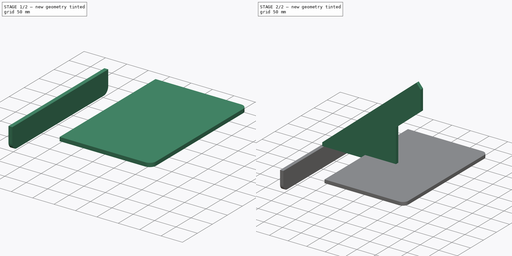
[diagram: build sequence overview — one tinted view per stage of 2, left to right]
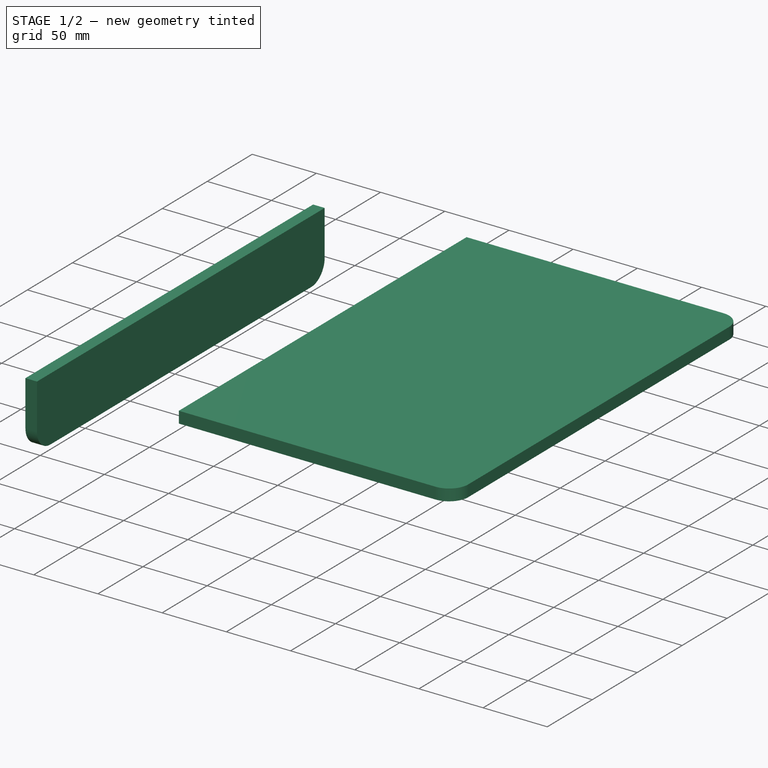
[diagram: stage 1 of 2 — iso view after this stage's code; geometry added in this stage tinted green]
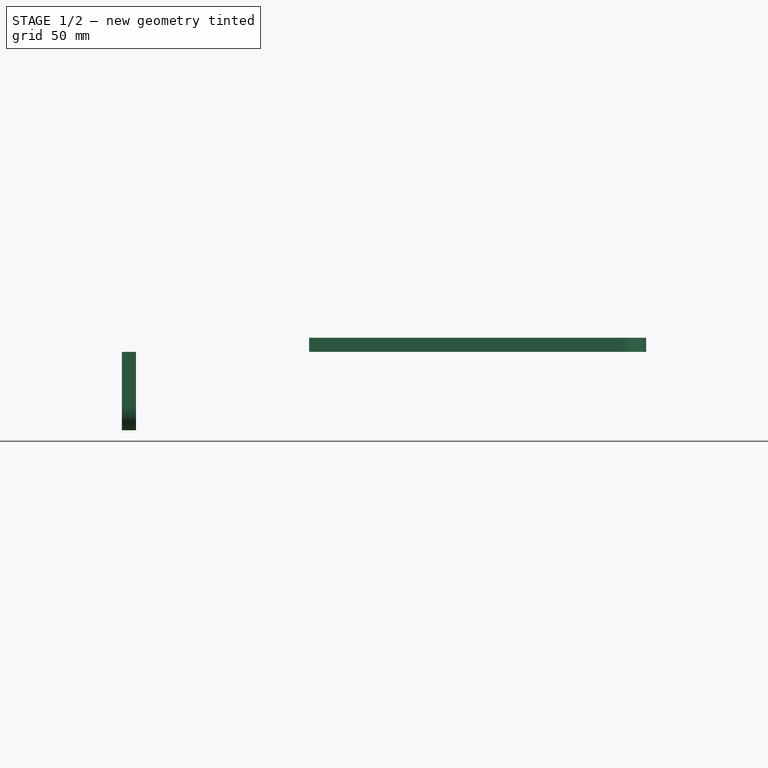
[diagram: stage 1 of 2 — front view after this stage's code; geometry added in this stage tinted green]
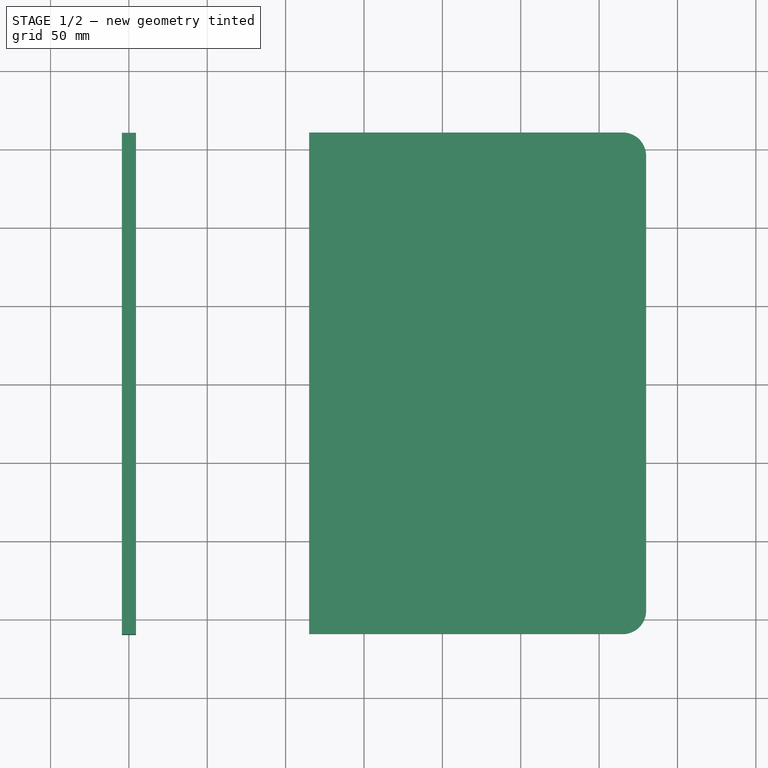
[diagram: stage 1 of 2 — top view after this stage's code; geometry added in this stage tinted green]
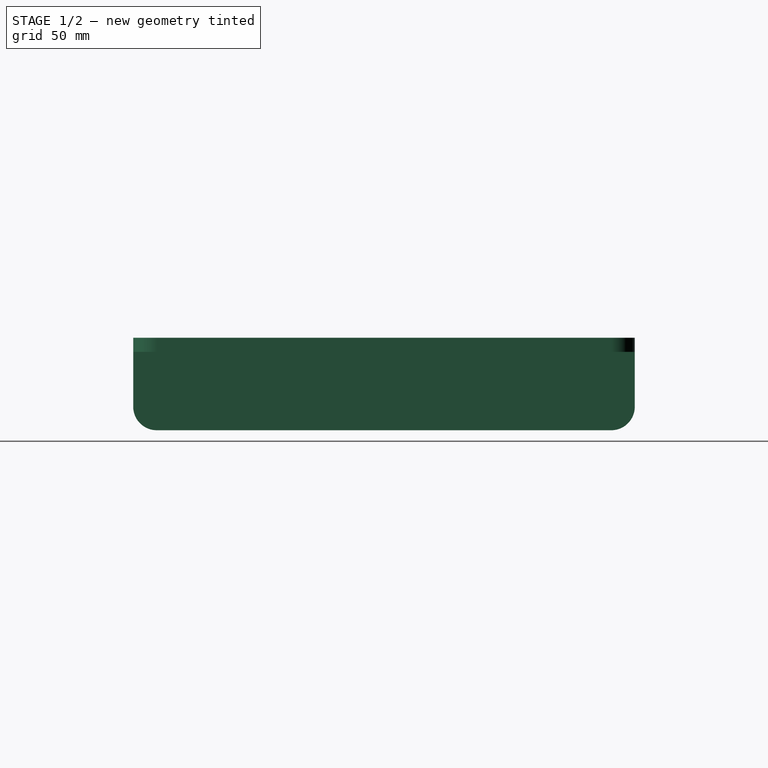
[diagram: stage 1 of 2 — right view after this stage's code; geometry added in this stage tinted green]
FCSTD DOCUMENT  (FreeCAD 0.19R)
Label: Wing_Assembly_right
License: Creative Commons Attribution-ShareAlike
LicenseURL: http://creativecommons.org/licenses/by-sa/4.0/
objects: App::Link×7, PartDesign::CoordinateSystem×5, Sketcher::SketchObject×4, PartDesign::Pad×4, PartDesign::Body×4, App::DocumentObjectGroup×2, App::FeaturePython×1, App::Part×1
note: 21 computed .brp shape members not serialized (recipe doc carries the construction recipe); baked Part::Feature solids carry a one-line shape summary decoded from their .brp
EXTERNAL_REF file=../key_dimensions.FCStd obj=Spreadsheet

FEATURE [PartDesign::Body] Wing_Support_B
  Group = -> [LCS_0001,Sketch001,Pad001]
  Origin = -> Origin002
  Tip = -> Pad001
FEATURE [App::Link] Wing_support_A001
  AssemblyType = Asm4EE
  AttachedBy = #LCS_0
  AttachedTo = Parent Assembly#LCS_Origin
  AttachmentOffset = pos=(0,115.5,0) rot=(0,0,1;0rad)
  LinkPlacement = pos=(0,115.5,0) rot=(0,0,1;0rad)
  LinkedObject = -> Wing_support_A
  Placement = pos=(0,115.5,0) rot=(0,0,1;0rad)
  expr: Placement = LCS_Origin.Placement * AttachmentOffset * LCS_0.Placement ^ -1
  expr: .AttachmentOffset.Base.y = key_dimensions#<<Dimensions>>.rail_C
FEATURE [App::Link] Wing_support_A002
  AssemblyType = Asm4EE
  AttachedBy = #LCS_0
  AttachedTo = Parent Assembly#LCS_Origin
  AttachmentOffset = pos=(0,-115.5,0) rot=(0,0,1;0rad)
  LinkPlacement = pos=(0,-115.5,0) rot=(0,0,1;0rad)
  LinkedObject = -> Wing_support_A
  Placement = pos=(0,-115.5,0) rot=(0,0,1;0rad)
  expr: Placement = LCS_Origin.Placement * AttachmentOffset * LCS_0.Placement ^ -1
  expr: .AttachmentOffset.Base.y = -key_dimensions#<<Dimensions>>.rail_C
FEATURE [App::Link] Wing_Support_B001
  AssemblyType = Asm4EE
  AttachedBy = #LCS_0001
  AttachedTo = Parent Assembly#LCS_Origin
  AttachmentOffset = pos=(0,38.5,0) rot=(0,0,1;0rad)
  LinkPlacement = pos=(0,38.5,0) rot=(0,0,1;0rad)
  LinkedObject = -> Wing_Support_B
  Placement = pos=(0,38.5,0) rot=(0,0,1;0rad)
  expr: Placement = LCS_Origin.Placement * AttachmentOffset * LCS_0001.Placement ^ -1
  expr: .AttachmentOffset.Base.y = key_dimensions#<<Dimensions>>.rail_A
FEATURE [App::Link] Wing_Support_B002
  AssemblyType = Asm4EE
  AttachedBy = #LCS_0001
  AttachedTo = Parent Assembly#LCS_Origin
  AttachmentOffset = pos=(0,-38.5,0) rot=(0,0,1;0rad)
  LinkPlacement = pos=(0,-38.5,0) rot=(0,0,1;0rad)
  LinkedObject = -> Wing_Support_B
  Placement = pos=(0,-38.5,0) rot=(0,0,1;0rad)
  expr: Placement = LCS_Origin.Placement * AttachmentOffset * LCS_0001.Placement ^ -1
  expr: .AttachmentOffset.Base.y = -key_dimensions#<<Dimensions>>.rail_A
FEATURE [PartDesign::CoordinateSystem] LCS_0002
  AttacherType = Attacher::AttachEngine3D
  MapMode = 2
  Support = -> [X_Axis003]
FEATURE [Sketcher::SketchObject] Sketch002
  FullyConstrained = true
  MapMode = 5
  Support = -> [XY_Plane003]
  expr: Constraints[11] = <<key_dimensions>>#<<Dimensions>>.wing_depth
  expr: Constraints[15] = <<key_dimensions>>#<<Dimensions>>.wing_length
  expr: Constraints[16] = <<key_dimensions>>#<<Dimensions>>.acrylic_width
  expr: Constraints[22] = <<key_dimensions>>#<<Dimensions>>.cradle_rounded
  sketch-geometry (9):
    g0: LineSegment StartX=115 StartY=160 StartZ=0 EndX=315 EndY=160 EndZ=0
    g1: LineSegment StartX=330 StartY=145 StartZ=0 EndX=330 EndY=-145 EndZ=0
    g2: LineSegment StartX=315 StartY=-160 StartZ=0 EndX=115 EndY=-160 EndZ=0
    g3: LineSegment StartX=115 StartY=-160 StartZ=0 EndX=115 EndY=160 EndZ=0
    g4: GeomPoint X=115 Y=0 Z=0
    g5: LineSegment StartX=315 StartY=160 StartZ=0 EndX=315 EndY=-160 EndZ=0
    g6: LineSegment StartX=115 StartY=145 StartZ=0 EndX=330 EndY=145 EndZ=0
    g7: ArcOfCircle CenterX=315 CenterY=145 CenterZ=0 NormalX=0 NormalY=0 NormalZ=1 AngleXU=0 Radius=15 StartAngle=4e-16 EndAngle=1.5708
    g8: ArcOfCircle CenterX=315 CenterY=-145 CenterZ=0 NormalX=0 NormalY=0 NormalZ=1 AngleXU=0 Radius=15 StartAngle=4.71239 EndAngle=6.28319
  constraints (25):
    c: Coincident(g2,g3)
    c: Coincident(g3,g0)
    c: Horizontal(g0)
    c: Horizontal(g2)
    c: Vertical(g1)
    c: Vertical(g3)
    c: PointOnObject(g4,g-1)
    c: Symmetric(g2,g0,g4)
    c: PointOnObject(g5,g0)
    c: PointOnObject(g5,g2)
    c: Vertical(g5)
    c: DistanceY(g5,g5) = 320
    c: PointOnObject(g6,g3)
    c: PointOnObject(g6,g1)
    c: Horizontal(g6)
    c: DistanceX(g6,g6) = 215
    c: DistanceX(g-1,g6) = 330
    c: Tangent(g0,g7) = 1.5708
    c: Tangent(g1,g7) = 1.5708
    c: Tangent(g2,g8) = 1.5708
    c: Tangent(g1,g8) = 1.5708
    c: Equal(g8,g7)
    c: Radius(g7) = 15
    c: PointOnObject(g1,g6)
    c: PointOnObject(g0,g5)
FEATURE [PartDesign::Pad] Pad002
  Direction = (1,1,1)
  Length = 9
  Length2 = 100
  Profile = -> Sketch002
  Reversed = true
  Type = 0
  expr: Length = <<key_dimensions>>#<<Dimensions>>.MDF_thick
FEATURE [PartDesign::Body] Wing
  Group = -> [LCS_0002,Sketch002,Pad002]
  Origin = -> Origin003
  Tip = -> Pad002
FEATURE [App::Link] Wing001
  AssemblyType = Asm4EE
  AttachedBy = #LCS_0002
  AttachedTo = Parent Assembly#LCS_Origin
  AttachmentOffset = pos=(0,0,0) rot=(0,1,0;-0.698132rad)
  LinkPlacement = pos=(0,0,0) rot=(0,1,0;5.58505rad)
  LinkedObject = -> Wing
  Placement = pos=(0,0,0) rot=(0,1,0;5.58505rad)
  expr: Placement = LCS_Origin.Placement * AttachmentOffset * LCS_0002.Placement ^ -1
  expr: .AttachmentOffset.Rotation.Angle = -<<key_dimensions>>#<<Dimensions>>.cradle_tilting
FEATURE [PartDesign::CoordinateSystem] LCS_0003
  AttacherType = Attacher::AttachEngine3D
  MapMode = 2
  Support = -> [X_Axis004]
FEATURE [Sketcher::SketchObject] Sketch003
  FullyConstrained = true
  MapMode = 5
  Placement = pos=(0,0,0) rot=(0.57735,0.57735,0.57735;2.0944rad)
  Support = -> [YZ_Plane004]
  expr: Constraints[13] = <<key_dimensions>>#<<Dimensions>>.wing_depth
  expr: Constraints[19] = <<key_dimensions>>#<<Dimensions>>.cradle_rounded
  expr: Constraints[24] = <<key_dimensions>>#<<Dimensions>>.MDF_thick
  sketch-geometry (9):
    g0: LineSegment StartX=-160 StartY=-9 StartZ=0 EndX=160 EndY=-9 EndZ=0
    g1: LineSegment StartX=160 StartY=-9 StartZ=0 EndX=160 EndY=-44 EndZ=0
    g2: LineSegment StartX=145 StartY=-59 StartZ=0 EndX=-145 EndY=-59 EndZ=0
    g3: LineSegment StartX=-160 StartY=-44 StartZ=0 EndX=-160 EndY=-9 EndZ=0
    g4: LineSegment StartX=145 StartY=-9 StartZ=0 EndX=145 EndY=-59 EndZ=0
    g5: LineSegment StartX=-160 StartY=-44 StartZ=0 EndX=160 EndY=-44 EndZ=0
    g6: ArcOfCircle CenterX=-145 CenterY=-44 CenterZ=0 NormalX=0 NormalY=0 NormalZ=1 AngleXU=0 Radius=15 StartAngle=3.14159 EndAngle=4.71239
    g7: ArcOfCircle CenterX=145 CenterY=-44 CenterZ=0 NormalX=0 NormalY=0 NormalZ=1 AngleXU=0 Radius=15 StartAngle=4.71239 EndAngle=6.28319
    g8: GeomPoint X=0 Y=-9 Z=0
  constraints (25):
    c: Coincident(g0,g1)
    c: Coincident(g3,g0)
    c: Horizontal(g0)
    c: Horizontal(g2)
    c: Vertical(g1)
    c: Vertical(g3)
    c: PointOnObject(g4,g0)
    c: PointOnObject(g4,g2)
    c: Vertical(g4)
    c: PointOnObject(g5,g3)
    c: PointOnObject(g5,g1)
    c: Horizontal(g5)
    c: DistanceY(g4,g4) = 50
    c: DistanceX(g5,g5) = 320
    c: Tangent(g3,g6) = 1.5708
    c: Tangent(g2,g6) = 1.5708
    c: Tangent(g1,g7) = 1.5708
    c: Tangent(g2,g7) = 1.5708
    c: Equal(g7,g6)
    c: Radius(g7) = 15
    c: PointOnObject(g1,g5)
    c: PointOnObject(g2,g4)
    c: PointOnObject(g8,g-2)
    c: Symmetric(g0,g0,g8)
    c: DistanceY(g8,g-1) = 9
FEATURE [PartDesign::Pad] Pad003
  Direction = (1,1,1)
  Length = 9
  Length2 = 100
  Midplane = true
  Placement = pos=(0,0,0) rot=(0.57735,0.57735,0.57735;2.0944rad)
  Profile = -> Sketch003
  Type = 0
  expr: Length = <<key_dimensions>>#<<Dimensions>>.MDF_thick
FEATURE [PartDesign::Body] Rib
  Group = -> [LCS_0003,Sketch003,Pad003]
  Origin = -> Origin004
  Tip = -> Pad003
FEATURE [App::DocumentObjectGroup] Parts
  Group = -> [Wing_support_A,Wing_Support_B,Wing,Rib]
FEATURE [App::Link] Rib001
  AssemblyType = Asm4EE
  AttachedBy = #LCS_0003
  AttachedTo = Wing001#LCS_0002
  AttachmentOffset = pos=(150,0,0) rot=(0,0,1;0rad)
  LinkPlacement = pos=(114.907,0,96.4181) rot=(0,1,0;5.58505rad)
  LinkedObject = -> Rib
  Placement = pos=(114.907,0,96.4181) rot=(0,1,0;5.58505rad)
  expr: Placement = Wing001.Placement * LCS_0002.Placement * AttachmentOffset * LCS_0003.Placement ^ -1
FEATURE [App::Link] Rib002
  AssemblyType = Asm4EE
  AttachedBy = #LCS_0003
  AttachedTo = Wing001#LCS_0002
  AttachmentOffset = pos=(280,0,0) rot=(0,0,1;0rad)
  LinkPlacement = pos=(214.492,0,179.981) rot=(0,1,0;5.58505rad)
  LinkedObject = -> Rib
  Placement = pos=(214.492,0,179.981) rot=(0,1,0;5.58505rad)
  expr: Placement = Wing001.Placement * LCS_0002.Placement * AttachmentOffset * LCS_0003.Placement ^ -1
FEATURE [App::Part] Model
  Configuration = 0
  Group = -> [LCS_Origin,Constraints,Variables,Wing_support_A001,Wing_support_A002,Wing_Support_B001,Wing_Support_B002,Wing001,Rib001,Rib002]
  Origin = -> Origin
  Type = Assembly4 Model

RESOLVED EXTERNAL PARTS (link-assembly join: the EXTERNAL_REF files above that resolve inside this repo's crawl, each included once):
---- part ../key_dimensions.FCStd = doc fcstd_41c4ab9f2bd9 ----
FCSTD DOCUMENT  (FreeCAD 0.19R)
Label: key_dimensions
License: Creative Commons Attribution-ShareAlike
LicenseURL: http://creativecommons.org/licenses/by-sa/4.0/
objects: Spreadsheet::Sheet×1

FEATURE [Spreadsheet::Sheet] Spreadsheet  label="Dimensions"
  cells = A1=MDF thickness; A2(MDF_thick)=9; B2=MDF thick; A3(MDF_thin)=5.5; B3=MDF thin; A4=Main Frame; A5(frame_depth)=176; B5=Frame depth; A6(frame_width)=100; B6=Frame width; A7(window_width)=690; B7=Window width; A8(center_height)=299.25; B8=Center height (base to center); A9(cradle_base)=235; B9=Cradle base (base to cradle base); A10(slider_axis_height)=190; B10=slider axis height (base to horizontal sliders axis); A11(top_height)=1150; B11=Top height (top height, without curve top); A12(rear_overhang)=400; B12=Rear overhang (from the center); A13=Acrylic; A14(acrylic_width)=330; B14=width; A15(acrylic_depth)=469; B15=depth; A16=Cradle; A17(cradle_tilting)=40; B17=cradle tilting; A18(cradle_rounded)=15; B18=cradle rounded; A19(base_cradle_width)=400; B19=Base Cradle width; A20(base_cradle_depth)=320; B20=Base Cradle depth; A21=Base Rails; A22(rail_A)=38.5; B22=Rail A; A23(rail_B)=65.5; B23=Rail B; A24(rail_C)=115.5; B24=Rail C; A25(rail_D)=140.5; B25=Rail D; A26(wing_depth)=320; B26=Wing depth; A27(wing_length)=215; B27=Wing length
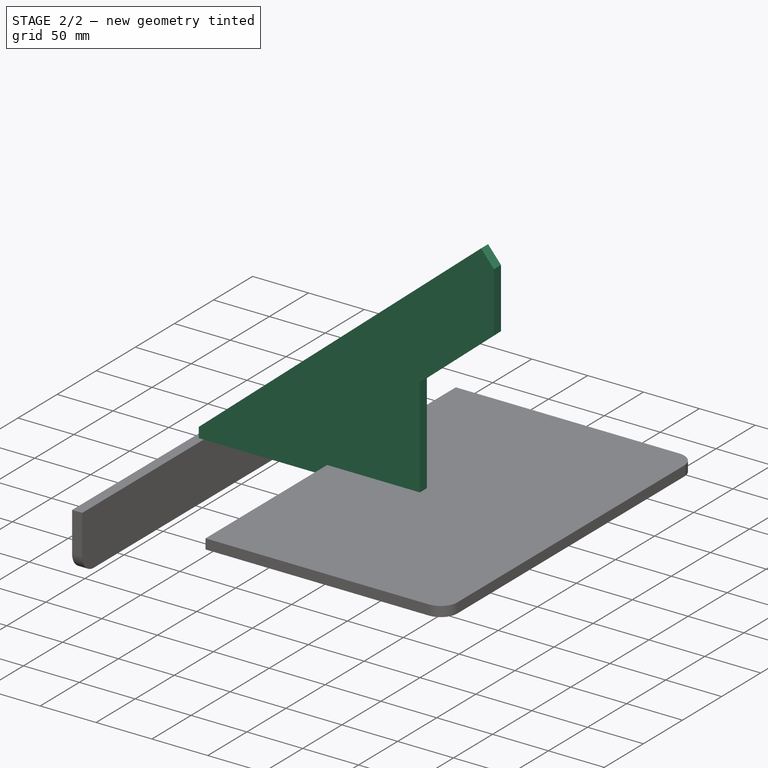
[diagram: stage 2 of 2 — iso view after this stage's code; geometry added in this stage tinted green]
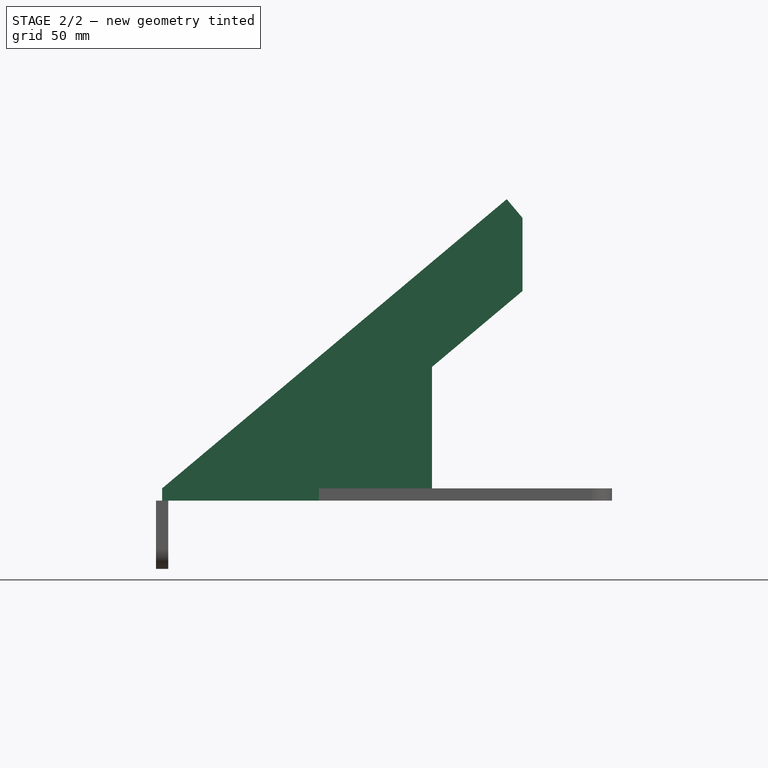
[diagram: stage 2 of 2 — front view after this stage's code; geometry added in this stage tinted green]
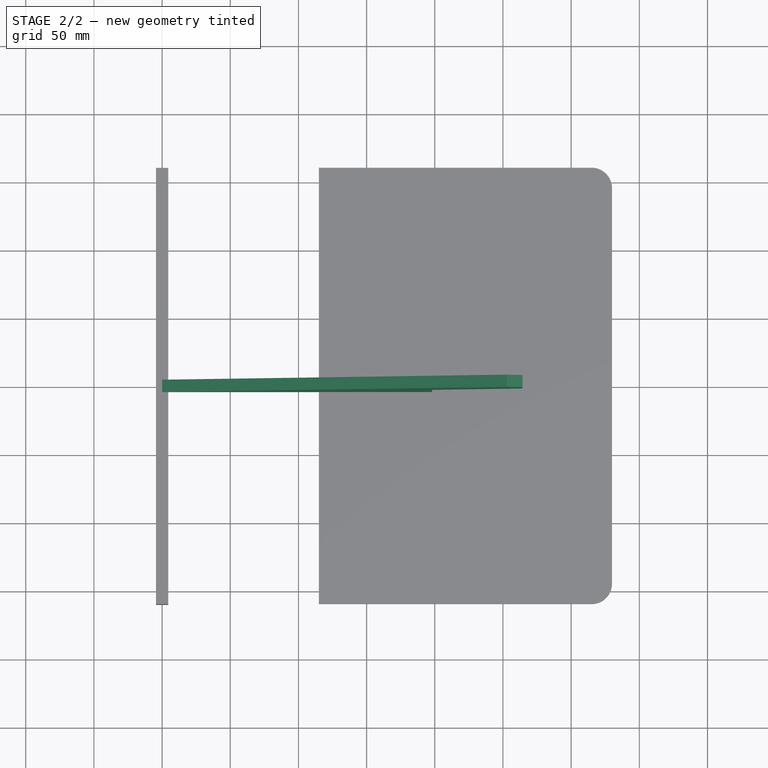
[diagram: stage 2 of 2 — top view after this stage's code; geometry added in this stage tinted green]
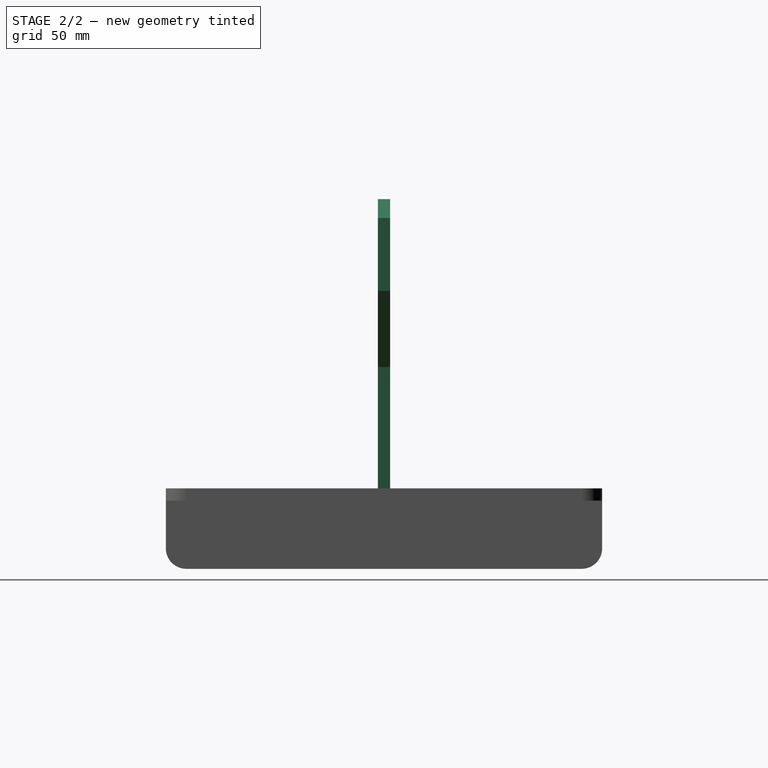
[diagram: stage 2 of 2 — right view after this stage's code; geometry added in this stage tinted green]
FEATURE [PartDesign::CoordinateSystem] LCS_Origin
  AttacherType = Attacher::AttachEngine3D
  MapMode = 2
  Support = -> [X_Axis]
FEATURE [App::DocumentObjectGroup] Constraints
FEATURE [App::FeaturePython] Variables  # WARN: FeaturePython — macro-defined, semantics opaque (R4)
FEATURE [PartDesign::CoordinateSystem] LCS_0
  AttacherType = Attacher::AttachEngine3D
  MapMode = 2
  Support = -> [X_Axis001]
FEATURE [Sketcher::SketchObject] Sketch  label="Wing_Support_A_Sketch"
  FullyConstrained = true
  MapMode = 5
  Placement = pos=(0,0,0) rot=(1,0,0;1.5708rad)
  Support = -> [XZ_Plane001]
  expr: Constraints[13] = <<key_dimensions>>#<<Dimensions>>.acrylic_width
  expr: Constraints[19] = <<key_dimensions>>#<<Dimensions>>.MDF_thick * 2
  expr: Constraints[18] = <<key_dimensions>>#<<Dimensions>>.MDF_thick
  expr: Constraints[9] = <<key_dimensions>>#<<Dimensions>>.cradle_tilting
  sketch-geometry (10):
    g0: LineSegment StartX=0 StartY=-9 StartZ=0 EndX=0 EndY=0 EndZ=0
    g1: LineSegment StartX=0 StartY=0 StartZ=0 EndX=252.795 EndY=212.12 EndZ=0
    g2: LineSegment StartX=252.795 StartY=212.12 StartZ=0 EndX=264.365 EndY=198.331 EndZ=0
    g3: LineSegment StartX=264.365 StartY=198.331 StartZ=0 EndX=264.365 EndY=144.809 EndZ=0
    g4: LineSegment StartX=264.365 StartY=144.809 StartZ=0 EndX=198 EndY=89.1227 EndZ=0
    g5: LineSegment StartX=198 StartY=89.1227 StartZ=0 EndX=198 EndY=0 EndZ=0
    g6: LineSegment StartX=175 StartY=-9 StartZ=0 EndX=0 EndY=-9 EndZ=0
    g7: LineSegment StartX=160.076 StartY=134.319 StartZ=0 EndX=198 EndY=89.1227 EndZ=0
    g8: LineSegment StartX=175 StartY=-9 StartZ=0 EndX=175 EndY=0 EndZ=0
    g9: LineSegment StartX=175 StartY=0 StartZ=0 EndX=198 EndY=0 EndZ=0
  constraints (30):
    c: Coincident(g0,g1)
    c: Coincident(g1,g2)
    c: Coincident(g2,g3)
    c: Vertical(g3)
    c: Coincident(g3,g4)
    c: Coincident(g4,g5)
    c: Vertical(g5)
    c: Coincident(g6,g0)
    c: Horizontal(g6)
    c: Angle(g1) = 0.698132
    c: Perpendicular(g1,g2)
    c: Parallel(g4,g1)
    c: Vertical(g0)
    c: Distance(g1) = 330
    c: PointOnObject(g7,g1)
    c: PointOnObject(g7,g4)
    c: Perpendicular(g1,g7)
    c: Distance(g7) = 59
    c: DistanceY(g0,g0) = 9
    c: Distance(g2) = 18
    c: Coincident(g0,g-1)
    c: PointOnObject(g4,g7)
    c: Coincident(g8,g9)
    c: Horizontal(g9)
    c: Coincident(g6,g8)
    c: Coincident(g5,g9)
    c: PointOnObject(g0,g9)
    c: DistanceX(g6,g6) = 175
    c: Vertical(g8)
    c: DistanceX(g8,g4) = 23
FEATURE [PartDesign::CoordinateSystem] LCS_0001
  AttacherType = Attacher::AttachEngine3D
  MapMode = 2
  Support = -> [X_Axis002]
FEATURE [Sketcher::SketchObject] Sketch001  label="Wing_Support_B_Sketch"
  FullyConstrained = true
  MapMode = 5
  Placement = pos=(0,0,0) rot=(1,0,0;1.5708rad)
  Support = -> [XZ_Plane002]
  expr: Constraints[11] = <<key_dimensions>>#<<Dimensions>>.acrylic_width
  expr: Constraints[17] = <<key_dimensions>>#<<Dimensions>>.MDF_thick * 2
  expr: Constraints[16] = <<key_dimensions>>#<<Dimensions>>.MDF_thick
  expr: Constraints[7] = <<key_dimensions>>#<<Dimensions>>.cradle_tilting
  sketch-geometry (9):
    g0: LineSegment StartX=0 StartY=-9 StartZ=0 EndX=0 EndY=0 EndZ=0
    g1: LineSegment StartX=0 StartY=0 StartZ=0 EndX=252.795 EndY=212.12 EndZ=0
    g2: LineSegment StartX=252.795 StartY=212.12 StartZ=0 EndX=264.365 EndY=198.331 EndZ=0
    g3: LineSegment StartX=264.365 StartY=198.331 StartZ=0 EndX=264.365 EndY=144.809 EndZ=0
    g4: LineSegment StartX=264.365 StartY=144.809 StartZ=0 EndX=192.861 EndY=84.8102 EndZ=0
    g5: LineSegment StartX=175 StartY=-9 StartZ=0 EndX=0 EndY=-9 EndZ=0
    g6: LineSegment StartX=154.936 StartY=130.007 StartZ=0 EndX=192.861 EndY=84.8102 EndZ=0
    g7: LineSegment StartX=175 StartY=-9 StartZ=0 EndX=175 EndY=46.508 EndZ=0
    g8: ArcOfCircle CenterX=225 CenterY=46.508 CenterZ=0 NormalX=0 NormalY=0 NormalZ=1 AngleXU=0 Radius=50 StartAngle=2.26893 EndAngle=3.14159
  constraints (26):
    c: Coincident(g0,g1)
    c: Coincident(g1,g2)
    c: Coincident(g2,g3)
    c: Vertical(g3)
    c: Coincident(g3,g4)
    c: Coincident(g5,g0)
    c: Horizontal(g5)
    c: Angle(g1) = 0.698132
    c: Perpendicular(g1,g2)
    c: Parallel(g4,g1)
    c: Vertical(g0)
    c: Distance(g1) = 330
    c: PointOnObject(g6,g1)
    c: PointOnObject(g6,g4)
    c: Perpendicular(g1,g6)
    c: Distance(g6) = 59
    c: DistanceY(g0,g0) = 9
    c: Distance(g2) = 18
    c: Coincident(g0,g-1)
    c: PointOnObject(g4,g6)
    c: Coincident(g5,g7)
    c: DistanceX(g5,g5) = 175
    c: Vertical(g7)
    c: Tangent(g8,g4) = -1.5708
    c: Tangent(g8,g7) = 1.5708
    c: Radius(g8) = 50
FEATURE [PartDesign::Pad] Pad
  Direction = (1,1,1)
  Length = 9
  Length2 = 100
  Midplane = true
  Placement = pos=(0,0,0) rot=(1,0,0;1.5708rad)
  Profile = -> Sketch
  Type = 0
  expr: Length = <<key_dimensions>>#<<Dimensions>>.MDF_thick
FEATURE [PartDesign::Body] Wing_support_A
  Group = -> [LCS_0,Sketch,Pad]
  Origin = -> Origin001
  Tip = -> Pad
FEATURE [PartDesign::Pad] Pad001
  Direction = (1,1,1)
  Length = 9
  Length2 = 100
  Midplane = true
  Placement = pos=(0,0,0) rot=(1,0,0;1.5708rad)
  Profile = -> Sketch001
  Type = 0
  expr: Length = <<key_dimensions>>#<<Dimensions>>.MDF_thick
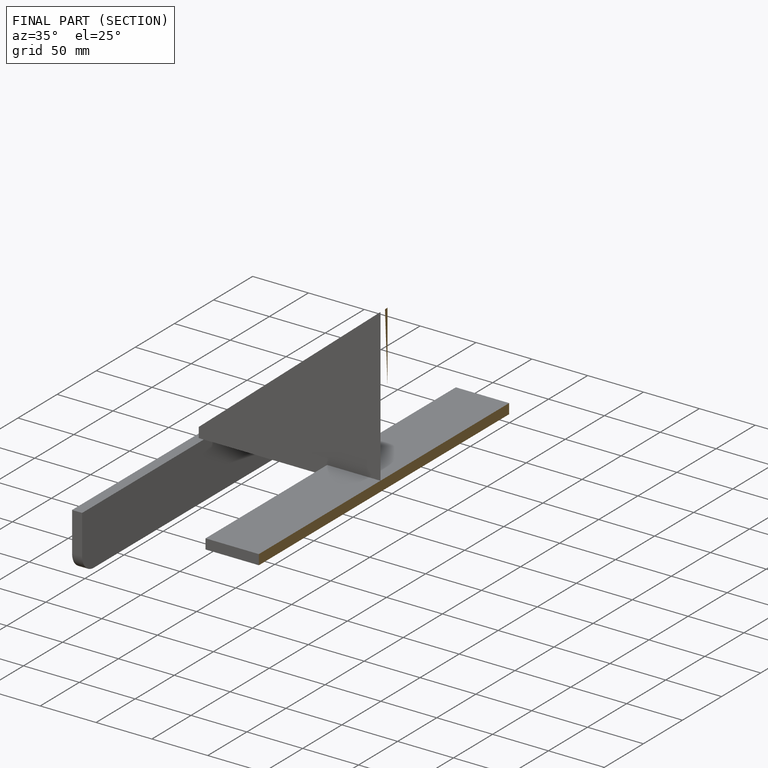
[diagram: finished part — half-section view (interior)]
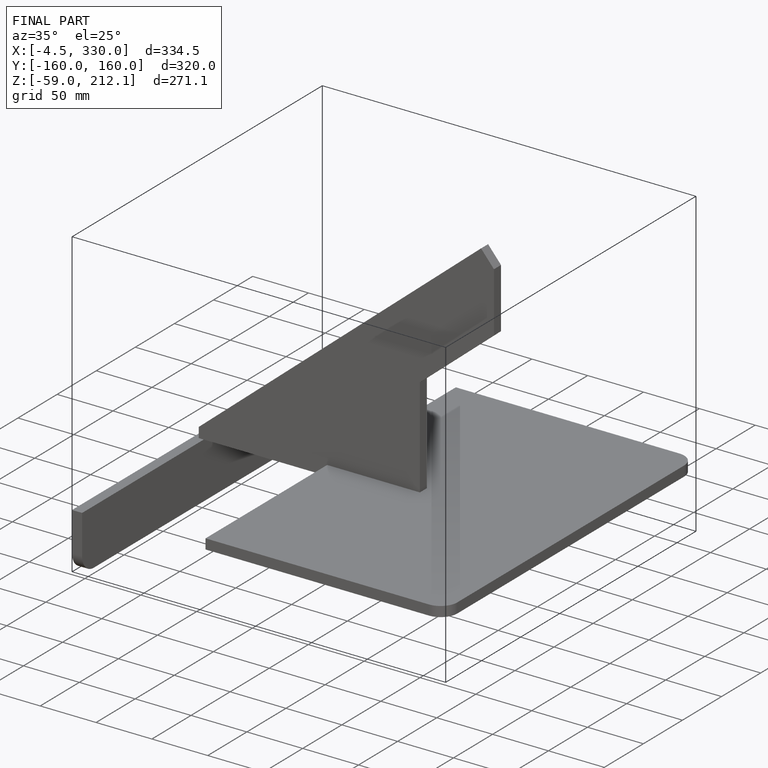
[diagram: finished part — iso view with bounding-box wireframe]
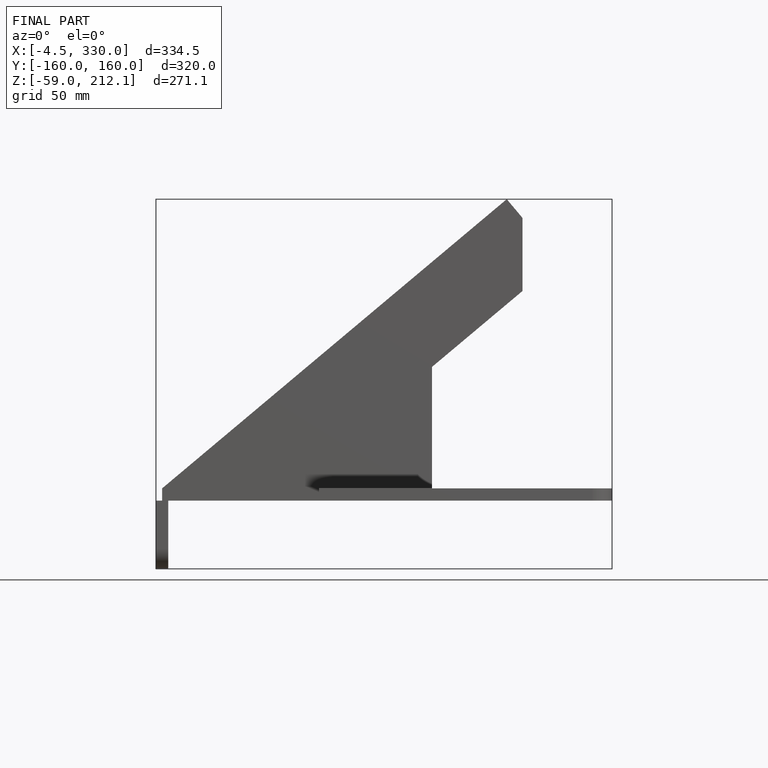
[diagram: finished part — front view with bounding-box wireframe]
